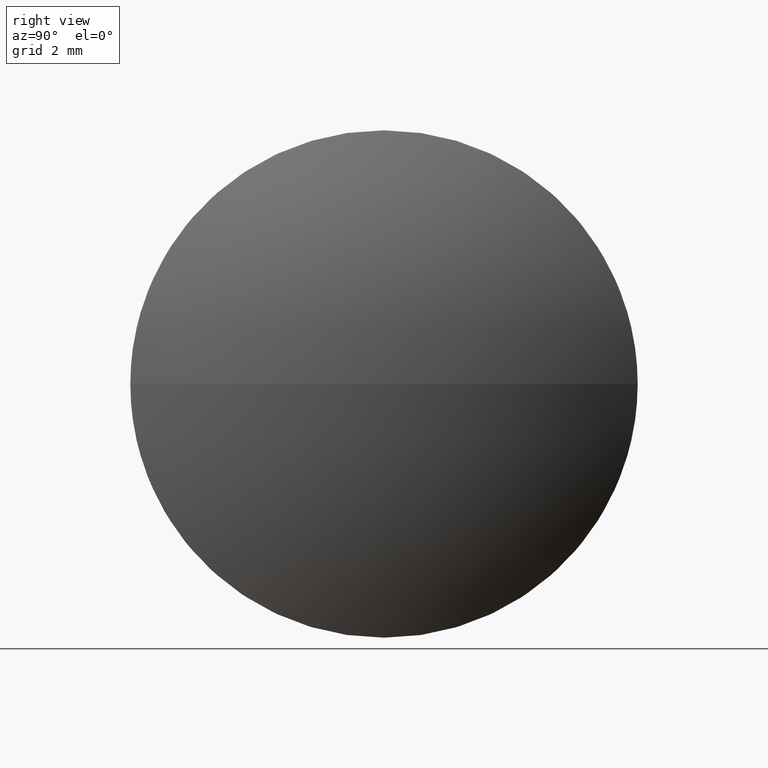
[diagram: clean part render]
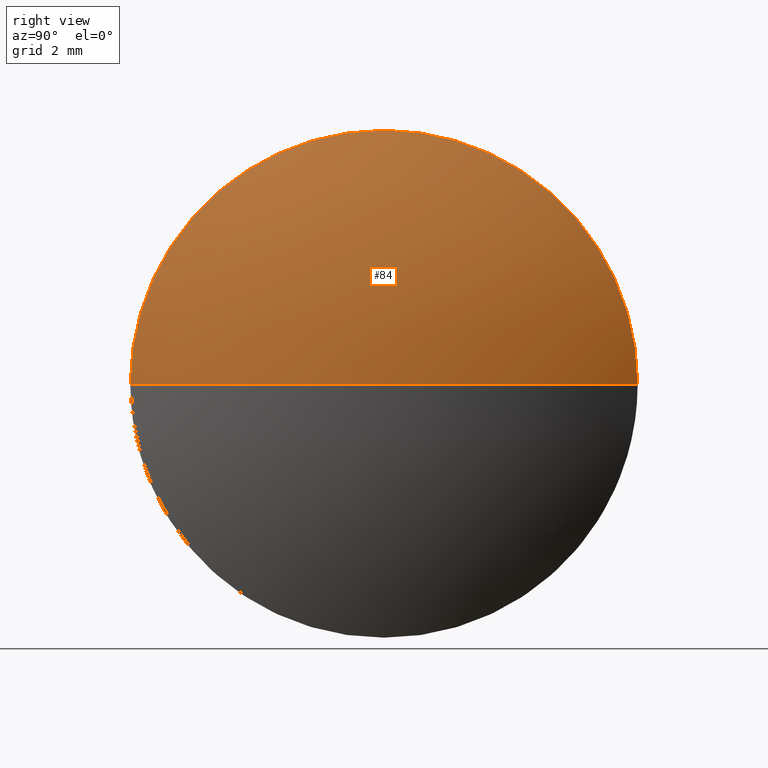
[diagram: same view with one face highlighted and labeled with its STEP entity id]
A machine part, right view. The second image highlights one B-rep face of the part: STEP entity #84.
In plain terms, the highlighted spherical surface has radius 10.3349 mm.
Its self-contained STEP definition (entity closure, byte-faithful):
#2 = CARTESIAN_POINT ( 'NONE',  ( 652.1120024651052100, 189.5627684869003800, 0.0000000000000000000 ) ) ;
#3 = DIRECTION ( 'NONE',  ( 0.0000000000000000000, 1.000000000000000000, 1.224646799147353200E-016 ) ) ;
#4 = CARTESIAN_POINT ( 'NONE',  ( 643.0670799844850800, 189.5627684869003500, 0.0000000000000000000 ) ) ;
#9 = AXIS2_PLACEMENT_3D ( 'NONE', #78, #22, #128 ) ;
#11 = EDGE_LOOP ( 'NONE', ( #45, #119, #186, #124 ) ) ;
#16 = AXIS2_PLACEMENT_3D ( 'NONE', #4, #18, #175 ) ;
#18 = DIRECTION ( 'NONE',  ( -0.0000000000000000000, 0.0000000000000000000, 1.000000000000000000 ) ) ;
#22 = DIRECTION ( 'NONE',  ( -1.000000000000000000, -0.0000000000000000000, -0.0000000000000000000 ) ) ;
#24 = EDGE_CURVE ( 'NONE', #142, #174, #185, .T. ) ;
#28 = VERTEX_POINT ( 'NONE', #138 ) ;
#30 = EDGE_CURVE ( 'NONE', #105, #28, #172, .T. ) ;
#45 = ORIENTED_EDGE ( 'NONE', *, *, #106, .F. ) ;
#48 = EDGE_CURVE ( 'NONE', #174, #28, #168, .T. ) ;
#49 = AXIS2_PLACEMENT_3D ( 'NONE', #51, #155, #3 ) ;
#51 = CARTESIAN_POINT ( 'NONE',  ( 643.0670799844850800, 189.5627684869003500, 0.0000000000000000000 ) ) ;
#61 = CARTESIAN_POINT ( 'NONE',  ( 643.0670799844850800, 189.5627684869003500, 0.0000000000000000000 ) ) ;
#63 = CIRCLE ( 'NONE', #49, 10.33492248062017900 ) ;
#64 = AXIS2_PLACEMENT_3D ( 'NONE', #61, #180, #94 ) ;
#78 = CARTESIAN_POINT ( 'NONE',  ( 652.1120024651052100, 189.5627684869003800, 0.0000000000000000000 ) ) ;
#84 = ADVANCED_FACE ( 'NONE', ( #115 ), #170, .T. ) ;
#92 = DIRECTION ( 'NONE',  ( -1.000000000000000000, -0.0000000000000000000, -0.0000000000000000000 ) ) ;
#94 = DIRECTION ( 'NONE',  ( 0.0000000000000000000, 1.000000000000000000, 0.0000000000000000000 ) ) ;
#105 = VERTEX_POINT ( 'NONE', #110 ) ;
#106 = EDGE_CURVE ( 'NONE', #105, #142, #63, .T. ) ;
#110 = CARTESIAN_POINT ( 'NONE',  ( 653.4020024651052800, 189.5627684869003500, 0.0000000000000000000 ) ) ;
#115 = FACE_OUTER_BOUND ( 'NONE', #11, .T. ) ;
#119 = ORIENTED_EDGE ( 'NONE', *, *, #30, .T. ) ;
#124 = ORIENTED_EDGE ( 'NONE', *, *, #24, .F. ) ;
#128 = DIRECTION ( 'NONE',  ( 0.0000000000000000000, 0.0000000000000000000, 1.000000000000000000 ) ) ;
#138 = CARTESIAN_POINT ( 'NONE',  ( 652.1120024651052100, 194.5627684869003800, 0.0000000000000000000 ) ) ;
#142 = VERTEX_POINT ( 'NONE', #152 ) ;
#152 = CARTESIAN_POINT ( 'NONE',  ( 652.1120024651052100, 184.5627684869003500, -6.123233995736773200E-016 ) ) ;
#155 = DIRECTION ( 'NONE',  ( 0.0000000000000000000, 1.224646799147353200E-016, -1.000000000000000000 ) ) ;
#162 = DIRECTION ( 'NONE',  ( 0.0000000000000000000, 0.0000000000000000000, 1.000000000000000000 ) ) ;
#166 = CARTESIAN_POINT ( 'NONE',  ( 652.1120024651052100, 189.5627684869003800, 5.000000000000004400 ) ) ;
#168 = CIRCLE ( 'NONE', #9, 5.000000000000004400 ) ;
#170 = SPHERICAL_SURFACE ( 'NONE', #64, 10.33492248062017900 ) ;
#172 = CIRCLE ( 'NONE', #16, 10.33492248062017900 ) ;
#174 = VERTEX_POINT ( 'NONE', #166 ) ;
#175 = DIRECTION ( 'NONE',  ( 1.000000000000000000, 0.0000000000000000000, 0.0000000000000000000 ) ) ;
#180 = DIRECTION ( 'NONE',  ( -0.0000000000000000000, 0.0000000000000000000, -1.000000000000000000 ) ) ;
#183 = AXIS2_PLACEMENT_3D ( 'NONE', #2, #92, #162 ) ;
#185 = CIRCLE ( 'NONE', #183, 5.000000000000004400 ) ;
#186 = ORIENTED_EDGE ( 'NONE', *, *, #48, .F. ) ;